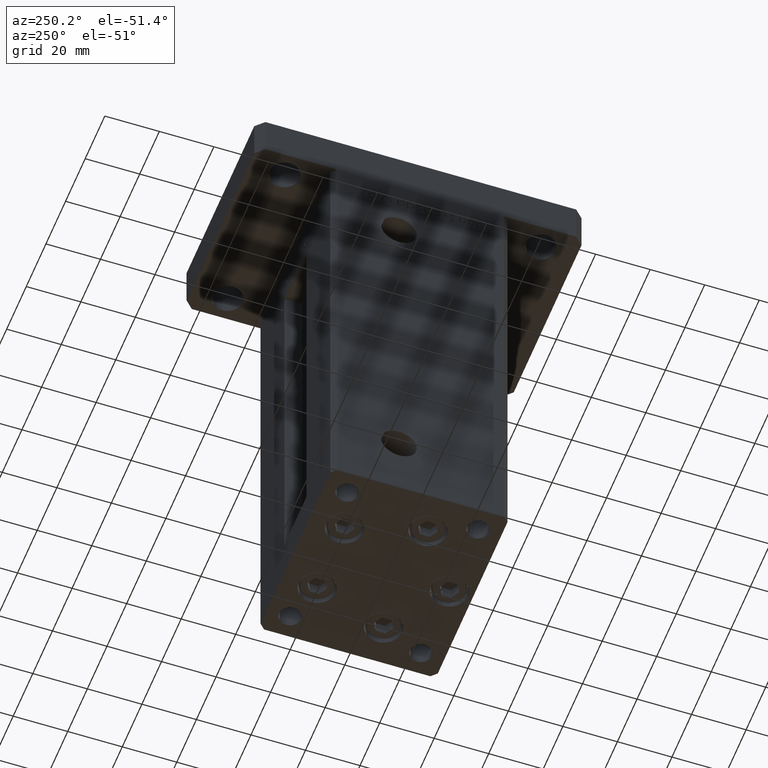
[diagram: clean part render]
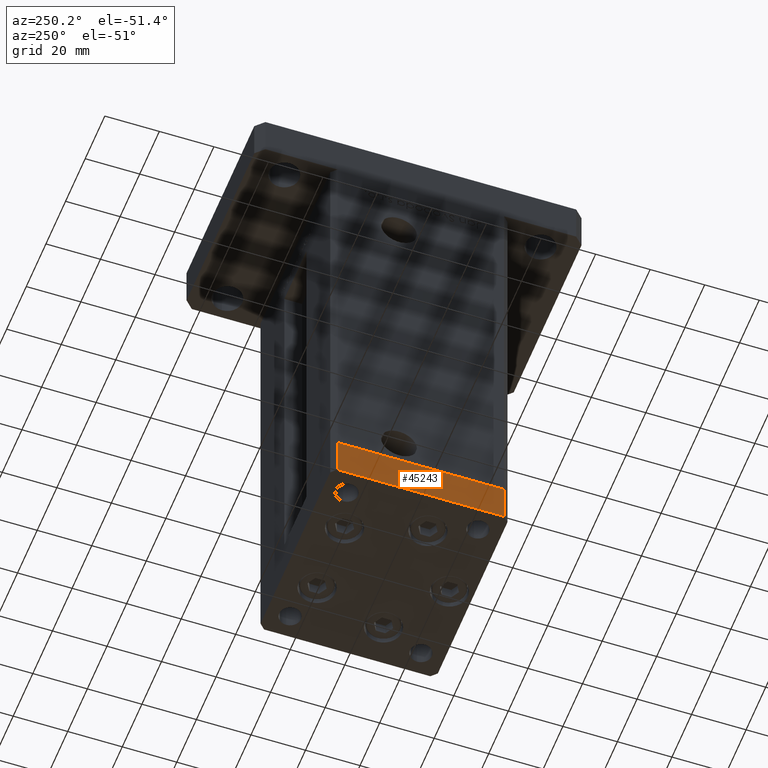
[diagram: same view with one face highlighted and labeled with its STEP entity id]
A machine part, auxiliary view. The second image highlights one B-rep face of the part: STEP entity #45243.
In plain terms, the highlighted planar face has unit normal (-1, 0, 0).
Its self-contained STEP definition (entity closure, byte-faithful):
#4703 = DIRECTION ( 'NONE',  ( 0.000000000000000000, 0.000000000000000000, 1.000000000000000000 ) ) ;
#8148 = DIRECTION ( 'NONE',  ( -1.478780668045802821E-15, 1.000000000000000000, 0.000000000000000000 ) ) ;
#8868 = CARTESIAN_POINT ( 'NONE',  ( 37.49999999999992184, 30.50000000000001066, -15.00000000000000000 ) ) ;
#8955 = EDGE_CURVE ( 'NONE', #17343, #16709, #47260, .T. ) ;
#9224 = LINE ( 'NONE', #12802, #31285 ) ;
#12583 = VERTEX_POINT ( 'NONE', #43027 ) ;
#12605 = VECTOR ( 'NONE', #4703, 1000.000000000000000 ) ;
#12802 = CARTESIAN_POINT ( 'NONE',  ( 37.50000000000001421, -30.50000000000000711, 0.000000000000000000 ) ) ;
#15452 = EDGE_LOOP ( 'NONE', ( #35289, #36597, #40375, #50843 ) ) ;
#16709 = VERTEX_POINT ( 'NONE', #52137 ) ;
#17343 = VERTEX_POINT ( 'NONE', #53283 ) ;
#20277 = PLANE ( 'NONE',  #32279 ) ;
#21191 = LINE ( 'NONE', #41136, #33028 ) ;
#22677 = CARTESIAN_POINT ( 'NONE',  ( 37.50000000000001421, -30.50000000000000711, -15.00000000000000000 ) ) ;
#24383 = DIRECTION ( 'NONE',  ( 1.000000000000000000, 1.478780668045803018E-15, -0.000000000000000000 ) ) ;
#24762 = EDGE_CURVE ( 'NONE', #27983, #12583, #25493, .T. ) ;
#25493 = LINE ( 'NONE', #42130, #12605 ) ;
#27983 = VERTEX_POINT ( 'NONE', #8868 ) ;
#28474 = FACE_OUTER_BOUND ( 'NONE', #15452, .T. ) ;
#29115 = DIRECTION ( 'NONE',  ( -1.478780668045802821E-15, 1.000000000000000000, 0.000000000000000000 ) ) ;
#30600 = VECTOR ( 'NONE', #43152, 1000.000000000000000 ) ;
#31285 = VECTOR ( 'NONE', #8148, 1000.000000000000000 ) ;
#32279 = AXIS2_PLACEMENT_3D ( 'NONE', #45128, #24383, #41027 ) ;
#33028 = VECTOR ( 'NONE', #29115, 1000.000000000000000 ) ;
#35289 = ORIENTED_EDGE ( 'NONE', *, *, #36600, .F. ) ;
#35879 = EDGE_CURVE ( 'NONE', #17343, #27983, #21191, .T. ) ;
#36597 = ORIENTED_EDGE ( 'NONE', *, *, #8955, .F. ) ;
#36600 = EDGE_CURVE ( 'NONE', #16709, #12583, #9224, .T. ) ;
#40375 = ORIENTED_EDGE ( 'NONE', *, *, #35879, .T. ) ;
#41027 = DIRECTION ( 'NONE',  ( -1.478780668045803018E-15, 1.000000000000000000, 0.000000000000000000 ) ) ;
#41136 = CARTESIAN_POINT ( 'NONE',  ( 37.50000000000001421, -30.50000000000000711, -15.00000000000000000 ) ) ;
#42130 = CARTESIAN_POINT ( 'NONE',  ( 37.49999999999992184, 30.50000000000001066, -15.00000000000000000 ) ) ;
#43027 = CARTESIAN_POINT ( 'NONE',  ( 37.49999999999992184, 30.50000000000001066, 0.000000000000000000 ) ) ;
#43152 = DIRECTION ( 'NONE',  ( 0.000000000000000000, 0.000000000000000000, 1.000000000000000000 ) ) ;
#45128 = CARTESIAN_POINT ( 'NONE',  ( 37.50000000000001421, -30.50000000000000711, -15.00000000000000000 ) ) ;
#45243 = ADVANCED_FACE ( 'NONE', ( #28474 ), #20277, .T. ) ;
#47260 = LINE ( 'NONE', #22677, #30600 ) ;
#50843 = ORIENTED_EDGE ( 'NONE', *, *, #24762, .T. ) ;
#52137 = CARTESIAN_POINT ( 'NONE',  ( 37.50000000000001421, -30.50000000000000711, 0.000000000000000000 ) ) ;
#53283 = CARTESIAN_POINT ( 'NONE',  ( 37.50000000000001421, -30.50000000000000711, -15.00000000000000000 ) ) ;